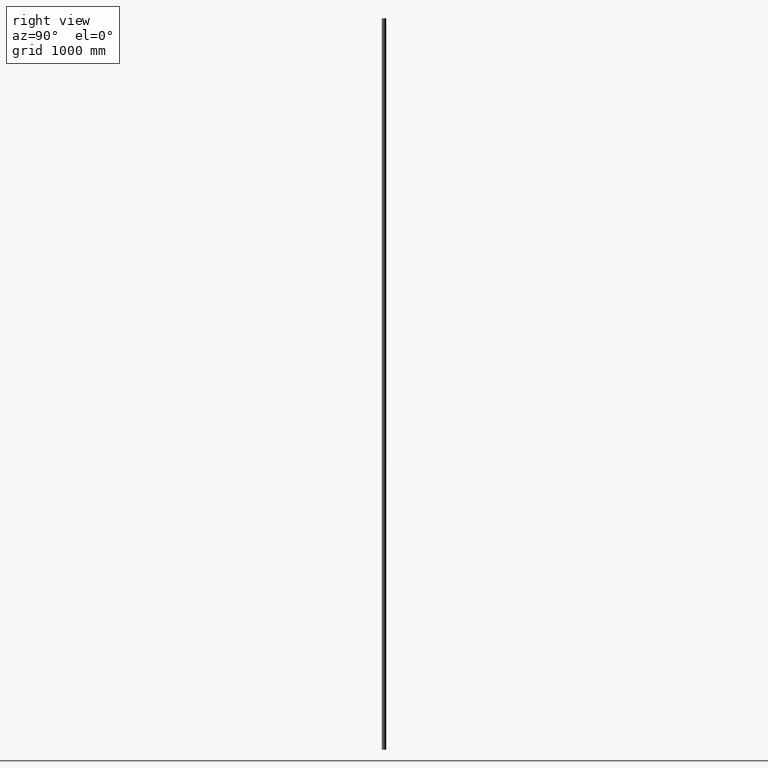
[diagram: clean part render]
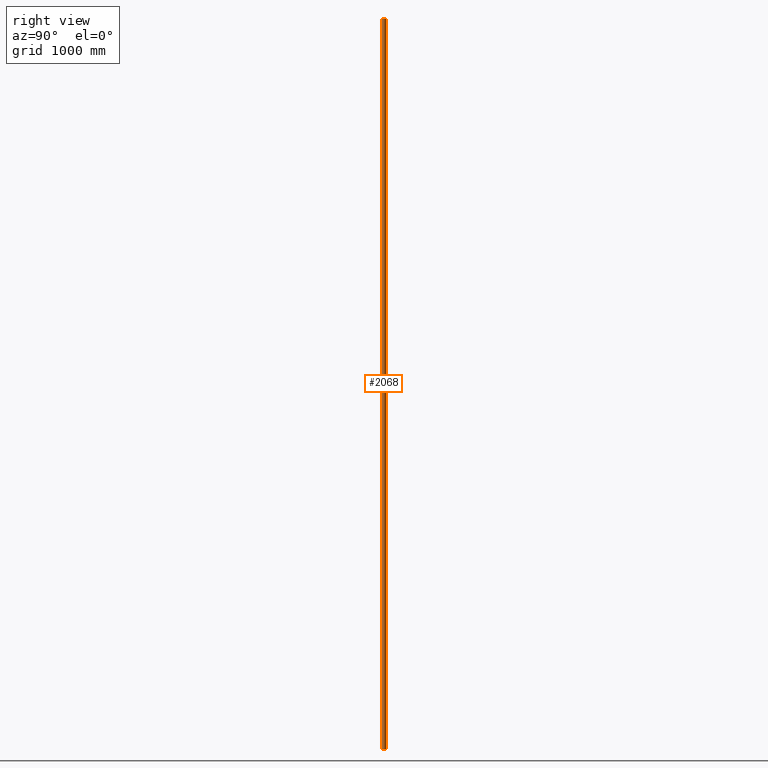
[diagram: same view with one face highlighted and labeled with its STEP entity id]
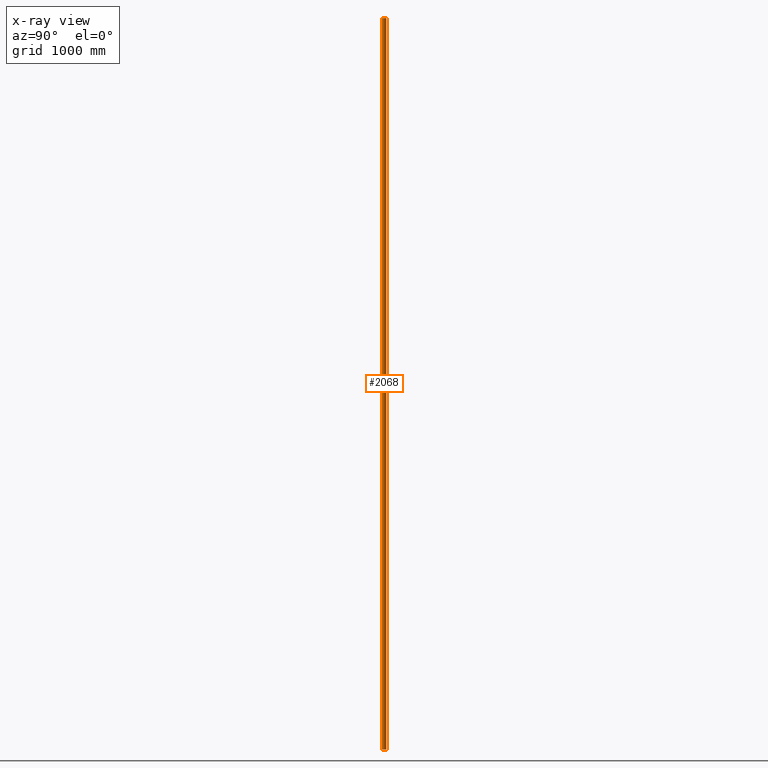
[diagram: x-ray of the same camera — body ghosted, the highlighted face saturated]
A machine part, right view. The second image highlights one B-rep face of the part: STEP entity #2068.
The next image is the same camera in x-ray: the body ghosted, the highlighted face saturated — about 0% of this face is hidden behind the body in this view.
In plain terms, the highlighted cylindrical surface (edge-blend (fillet) strip) has radius 21.2 mm, axis along (0, 0, 1).
Its self-contained STEP definition (entity closure, byte-faithful):
#1055 = EDGE_CURVE ( 'NONE', #2094, #15276, #7263, .T. ) ;
#1143 = CIRCLE ( 'NONE', #6707, 21.19999999999999929 ) ;
#2068 = ADVANCED_FACE ( 'NONE', ( #15282 ), #12710, .T. ) ;
#2094 = VERTEX_POINT ( 'NONE', #2182 ) ;
#2130 = ORIENTED_EDGE ( 'NONE', *, *, #1055, .T. ) ;
#2182 = CARTESIAN_POINT ( 'NONE',  ( 15.45833333333333037, -0.1608013257614485381, -3000.000000000000000 ) ) ;
#2812 = ORIENTED_EDGE ( 'NONE', *, *, #5748, .T. ) ;
#3327 = LINE ( 'NONE', #13963, #5862 ) ;
#3986 = DIRECTION ( 'NONE',  ( 0.000000000000000000, 0.000000000000000000, 1.000000000000000000 ) ) ;
#4116 = AXIS2_PLACEMENT_3D ( 'NONE', #5751, #9438, #5799 ) ;
#4440 = DIRECTION ( 'NONE',  ( 1.000000000000000000, 0.000000000000000000, 0.000000000000000000 ) ) ;
#4461 = EDGE_CURVE ( 'NONE', #2094, #11780, #3327, .T. ) ;
#4618 = VERTEX_POINT ( 'NONE', #4653 ) ;
#4653 = CARTESIAN_POINT ( 'NONE',  ( -15.45833333333333037, -0.1608013257614511471, 3000.000000000000000 ) ) ;
#4787 = CARTESIAN_POINT ( 'NONE',  ( 2.847925683768069846E-16, 14.34712514756876267, -3000.000000000000000 ) ) ;
#5014 = DIRECTION ( 'NONE',  ( 1.000000000000000000, 0.000000000000000000, 0.000000000000000000 ) ) ;
#5529 = DIRECTION ( 'NONE',  ( 0.000000000000000000, 0.000000000000000000, 1.000000000000000000 ) ) ;
#5655 = DIRECTION ( 'NONE',  ( 0.000000000000000000, 0.000000000000000000, 1.000000000000000000 ) ) ;
#5748 = EDGE_CURVE ( 'NONE', #15276, #4618, #13243, .T. ) ;
#5751 = CARTESIAN_POINT ( 'NONE',  ( 2.847925683768069846E-16, 14.34712514756876267, -3000.000000000000000 ) ) ;
#5799 = DIRECTION ( 'NONE',  ( 1.000000000000000000, 0.000000000000000000, 0.000000000000000000 ) ) ;
#5862 = VECTOR ( 'NONE', #3986, 1000.000000000000000 ) ;
#6160 = DIRECTION ( 'NONE',  ( 0.000000000000000000, 0.000000000000000000, 1.000000000000000000 ) ) ;
#6707 = AXIS2_PLACEMENT_3D ( 'NONE', #11952, #5655, #4440 ) ;
#7263 = CIRCLE ( 'NONE', #9698, 21.19999999999999929 ) ;
#7865 = CARTESIAN_POINT ( 'NONE',  ( -15.45833333333333037, -0.1608013257614511471, -3000.000000000000000 ) ) ;
#9101 = CARTESIAN_POINT ( 'NONE',  ( 15.45833333333333037, -0.1608013257614485381, 3000.000000000000000 ) ) ;
#9166 = ORIENTED_EDGE ( 'NONE', *, *, #15692, .F. ) ;
#9438 = DIRECTION ( 'NONE',  ( 0.000000000000000000, 0.000000000000000000, 1.000000000000000000 ) ) ;
#9698 = AXIS2_PLACEMENT_3D ( 'NONE', #4787, #6160, #5014 ) ;
#11564 = EDGE_LOOP ( 'NONE', ( #9166, #13496, #2130, #2812 ) ) ;
#11780 = VERTEX_POINT ( 'NONE', #9101 ) ;
#11952 = CARTESIAN_POINT ( 'NONE',  ( 2.847925683768069846E-16, 14.34712514756876267, 3000.000000000000000 ) ) ;
#12062 = VECTOR ( 'NONE', #5529, 1000.000000000000000 ) ;
#12710 = CYLINDRICAL_SURFACE ( 'NONE', #4116, 21.19999999999999929 ) ;
#13243 = LINE ( 'NONE', #7865, #12062 ) ;
#13496 = ORIENTED_EDGE ( 'NONE', *, *, #4461, .F. ) ;
#13499 = CARTESIAN_POINT ( 'NONE',  ( -15.45833333333333037, -0.1608013257614511471, -3000.000000000000000 ) ) ;
#13963 = CARTESIAN_POINT ( 'NONE',  ( 15.45833333333333037, -0.1608013257614485381, -3000.000000000000000 ) ) ;
#15276 = VERTEX_POINT ( 'NONE', #13499 ) ;
#15282 = FACE_OUTER_BOUND ( 'NONE', #11564, .T. ) ;
#15692 = EDGE_CURVE ( 'NONE', #11780, #4618, #1143, .T. ) ;